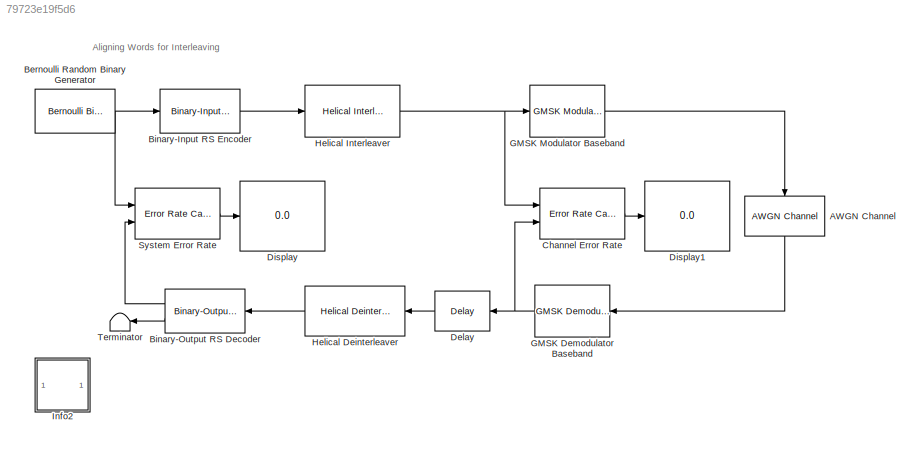
MODEL slx_79723e19f5d6
KIND model
BLOCK [Reference] AWGN Channel  REF=commchan3/AWGN
Channel
  EbNodB = 10
  EsNodB = 50
  InputProcessing = Columns as channels (frame based)
  Ports = [1, 1]
  Ps = 1
  SNRdB = -6
  SourceBlock = commchan3/AWGN\nChannel
  SourceType = AWGN Channel
  Tsym = 12
  UserDataPersistent = on
  bitsPerSym = 1
  noiseMode = Signal to noise ratio  (SNR)
  seed = 18233
  variance = 1
BLOCK [Reference] Bernoulli Random Binary Generator  REF=commrandsrc2/Bernoulli Binary
Generator
  P = .5
  Ports = [0, 1]
  SourceBlock = commrandsrc2/Bernoulli Binary\nGenerator
  SourceType = Bernoulli Binary Generator
  Ts = .1
  frameBased = on
  orient = off
  outDataType = double
  sampPerFrame = 15
  seed = 0
BLOCK [Reference] Binary-Input RS Encoder  REF=commblkcod2/Binary-Input
RS Encoder
  Ports = [1, 1]
  SourceBlock = commblkcod2/Binary-Input\nRS Encoder
  SourceType = Binary-Input RS Encoder
  genPoly = rsgenpoly(7,3)
  k = 5
  n = 7
  outDType = Same as input
  prPoly = [1 0 1 1]
  punctVec = [ones(2,1); zeros(2,1)]
  specGenPoly = off
  specPrimPoly = off
  specPuncture = off
BLOCK [Reference] Binary-Output RS Decoder  REF=commblkcod2/Binary-Output
RS Decoder
  Ports = [1, 2]
  SourceBlock = commblkcod2/Binary-Output\nRS Decoder
  SourceType = Binary-Output RS Decoder
  genPoly = rsgenpoly(7,3)
  k = 5
  n = 7
  outDType = Same as input
  prPoly = [1 0 1 1]
  punctVec = [ones(2,1); zeros(2,1)]
  showNumErr = on
  specErasurePort = off
  specGenPoly = off
  specPrimPoly = off
  specPuncture = off
BLOCK [Reference] Channel Error Rate  REF=commsink2/Error Rate
Calculation
  N = 16
  PMode = Port
  Ports = [2, 1]
  RsMode2 = off
  SourceBlock = commsink2/Error Rate\nCalculation
  SourceType = Error Rate Calculation
  WsName = ErrorVec
  cp_mode = Entire frame
  maxBits = 1000
  numErr = 100
  st_delay = 0
  stop = off
  subframe = []
BLOCK [Reference] Delay  REF=dspsigops/Delay
  InputProcessing = Columns as channels (frame based)
  Ports = [1, 1]
  SourceBlock = dspsigops/Delay
  SourceType = Delay
  UserDataPersistent = on
  delay = 5
  dif_ic_for_ch = off
  dif_ic_for_dly = off
  dly_unit = Samples
  ic = 0
  ic_detail = off
  reset_popup = None
BLOCK [Display] Display
  Decimation = 1
  Ports = [1]
BLOCK [Display] Display1
  Decimation = 1
  Ports = [1]
BLOCK [Reference] GMSK Demodulator Baseband  REF=commdigbbndcpm2/GMSK
Demodulator
Baseband
  BT = .3
  OutputType = Bit
  Ports = [1, 1]
  RateOptions = Enforce single-rate processing
  SourceBlock = commdigbbndcpm2/GMSK\nDemodulator\nBaseband
  SourceType = GMSK Demodulator Baseband
  UserDataPersistent = on
  outDType = double
  phaseOffset = 0
  preHistory = 1
  pulseLength = 3
  samplesPerSymbol = 16
  traceBack = 16
BLOCK [Reference] GMSK Modulator Baseband  REF=commdigbbndcpm2/GMSK
Modulator
Baseband
  BT = .3
  Ports = [1, 1]
  RateOptions = Enforce single-rate processing
  SourceBlock = commdigbbndcpm2/GMSK\nModulator\nBaseband
  SourceType = GMSK Modulator Baseband
  UserDataPersistent = on
  inputType = Bit
  outDataType = double
  phaseOffset = 0
  preHistory = 1
  pulseLength = 3
  samplesPerSymbol = 16
BLOCK [Reference] Helical Deinterleaver  REF=commcnvintrlv2/Helical
Deinterleaver
  C = 7
  N = 3
  Ports = [1, 1]
  SourceBlock = commcnvintrlv2/Helical\nDeinterleaver
  SourceType = Helical Deinterleaver
  ic = 0
  s = 1
BLOCK [Reference] Helical Interleaver  REF=commcnvintrlv2/Helical
Interleaver
  C = 7
  N = 3
  Ports = [1, 1]
  SourceBlock = commcnvintrlv2/Helical\nInterleaver
  SourceType = Helical Interleaver
  ic = 0
  s = 1
BLOCK [SubSystem] Info2
  AncestorBlock = commblksprivate/Info
  OpenFcn = helpview([docroot '/toolbox/comm/comm.map'], 'doc_gmskint')
  Ports = []
  RequestExecContextInheritance = off
BLOCK [Reference] System Error Rate  REF=commsink2/Error Rate
Calculation
  N = 15*3
  PMode = Port
  Ports = [2, 1]
  RsMode2 = off
  SourceBlock = commsink2/Error Rate\nCalculation
  SourceType = Error Rate Calculation
  WsName = ErrorVec
  cp_mode = Entire frame
  maxBits = 1000
  numErr = 100
  st_delay = 0
  stop = off
  subframe = []
BLOCK [Terminator] Terminator
ANNOTATION (root): Aligning Words for Interleaving
LINE AWGN Channel:1 -> GMSK Demodulator Baseband:1
NET Bernoulli Random Binary Generator:1 -> Binary-Input RS Encoder:1, System Error Rate:1
LINE Binary-Input RS Encoder:1 -> Helical Interleaver:1
LINE Binary-Output RS Decoder:1 -> System Error Rate:2
LINE Binary-Output RS Decoder:2 -> Terminator:1
LINE Channel Error Rate:1 -> Display1:1
LINE Delay:1 -> Helical Deinterleaver:1
NET GMSK Demodulator Baseband:1 -> Channel Error Rate:2, Delay:1
LINE GMSK Modulator Baseband:1 -> AWGN Channel:1
LINE Helical Deinterleaver:1 -> Binary-Output RS Decoder:1
NET Helical Interleaver:1 -> Channel Error Rate:1, GMSK Modulator Baseband:1
LINE System Error Rate:1 -> Display:1
note: NET lines group one-source signal fan-out (src -> all destinations, sorted); 1:1 wires keep LINE
